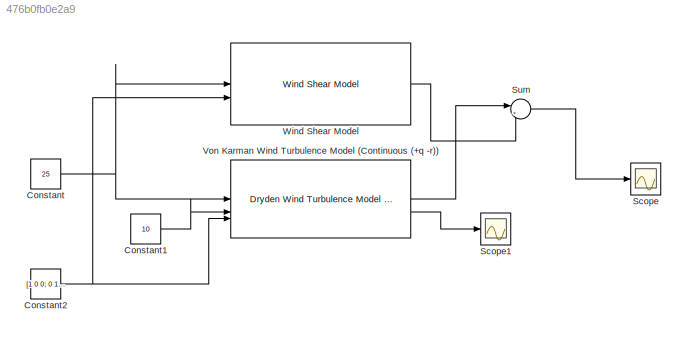
MODEL slx_476b0fb0e2a9
KIND model
CONFIG AbsTol = auto
CONFIG EnableMultiTasking = off
CONFIG FixedStep = auto
CONFIG MaxStep = auto
CONFIG MinStep = auto
CONFIG RelTol = 1e-3
CONFIG SampleTimeConstraint = Unconstrained
CONFIG SolverName = VariableStepAuto
CONFIG StartTime = 0.0
CONFIG StopTime = 30
BLOCK [Constant] Constant
  Value = 25
BLOCK [Constant] Constant1
  Value = 10
BLOCK [Constant] Constant2
  Value = [1 0 0; 0 1 0; 0 0 1]
BLOCK [Scope] Scope
  Floating = off
  NumInputPorts = 1
  ScopeSpecificationString = Simulink.scopes.TimeScopeBlockCfg('CurrentConfiguration', extmgr.ConfigurationSet(extmgr.Configuration('Core','General UI',true),extmgr.Configuration('Core','Source UI',true),extmgr.Configuration('Sources','WiredSimulink',true),extmgr.Configuration('Visuals','Time Domain',true,'SerializedDisplays',{struct('MinYLimReal','-25.92954','MaxYLimReal','9.91948','YLabelReal','','MinYLimMag','0.00000','Max...<+1490ch>
BLOCK [Scope] Scope1
  Floating = off
  NumInputPorts = 1
  ScopeSpecificationString = Simulink.scopes.TimeScopeBlockCfg('CurrentConfiguration', extmgr.ConfigurationSet(extmgr.Configuration('Core','General UI',true),extmgr.Configuration('Core','Source UI',true),extmgr.Configuration('Sources','WiredSimulink',true,'DataLoggingVariableName','ScopeData1'),extmgr.Configuration('Visuals','Time Domain',true,'SerializedDisplays',{struct('MinYLimReal','-0.48208','MaxYLimReal','0.48145','YLab...<+1684ch>
BLOCK [Sum] Sum
  Inputs = |++
BLOCK [Reference] Von Karman Wind Turbulence Model (Continuous (+q -r))  REF=aerolibwind2/Dryden Wind Turbulence Model 
(Continuous (+q -r))
  LibrarySourceBlock = aerolibwind2/Von Karman Wind Turbulence Model \n(Continuous (+q -r))
  SourceBlock = aerolibwind2/Dryden Wind Turbulence Model \n(Continuous (+q -r))
  SourceType = Wind Turbulence Model
BLOCK [Reference] Wind Shear Model  REF=aerolibwind2/Wind Shear Model
  SourceBlock = aerolibwind2/Wind Shear Model
  SourceType = Wind Shear Model
LINE Constant1:1 -> Von Karman Wind Turbulence Model (Continuous (+q -r)):2
NET Constant2:1 -> Von Karman Wind Turbulence Model (Continuous (+q -r)):3, Wind Shear Model:2
NET Constant:1 -> Von Karman Wind Turbulence Model (Continuous (+q -r)):1, Wind Shear Model:1
LINE Sum:1 -> Scope:1
LINE Von Karman Wind Turbulence Model (Continuous (+q -r)):1 -> Sum:1
LINE Von Karman Wind Turbulence Model (Continuous (+q -r)):2 -> Scope1:1
LINE Wind Shear Model:1 -> Sum:2
note: NET lines group one-source signal fan-out (src -> all destinations, sorted); 1:1 wires keep LINE
